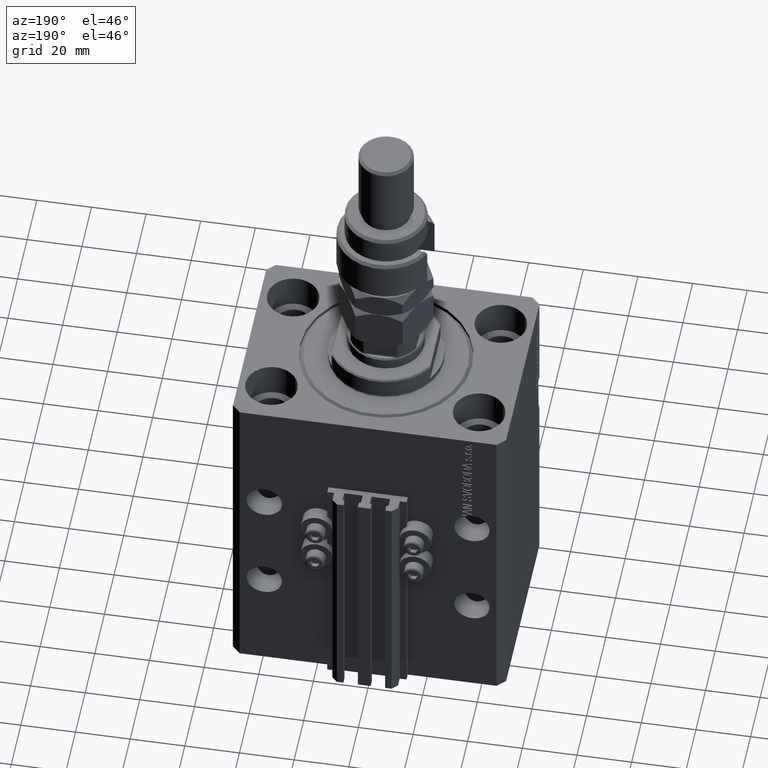
[diagram: clean part render]
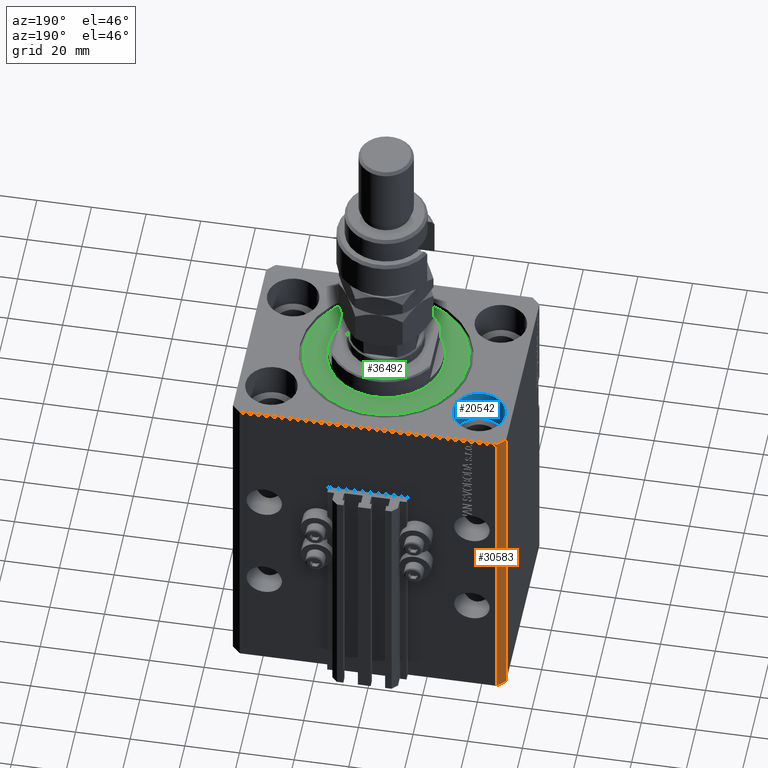
[diagram: same view with three faces highlighted in distinct colors, each labeled with its STEP entity id]
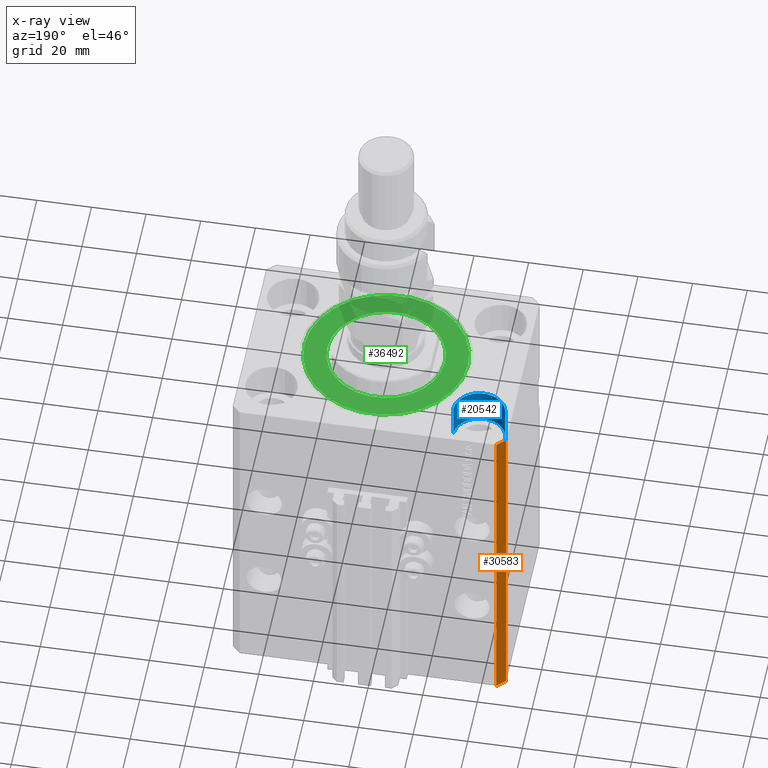
[diagram: x-ray of the same camera — body ghosted, the three highlighted faces saturated]
A machine part, auxiliary view with three faces highlighted in distinct colors.
The next image is the same camera in x-ray (body ghosted, the three faces saturated) — at least one of them is partly hidden behind the body in this view.
Their STEP definitions:

[orange] entity #30583 — the highlighted planar face has unit normal (-0.7071, 0.7071, 0).
#2762 = LINE ( 'NONE', #37610, #6996 ) ;
#4656 = EDGE_CURVE ( 'NONE', #17579, #46089, #13217, .T. ) ;
#5789 = VERTEX_POINT ( 'NONE', #24896 ) ;
#6147 = VECTOR ( 'NONE', #24327, 1000.000000000000000 ) ;
#6996 = VECTOR ( 'NONE', #11006, 1000.000000000000000 ) ;
#8596 = LINE ( 'NONE', #40068, #6147 ) ;
#9286 = DIRECTION ( 'NONE',  ( -0.7071067811865466846, 0.7071067811865483499, 0.000000000000000000 ) ) ;
#11006 = DIRECTION ( 'NONE',  ( -0.7071067811865483499, -0.7071067811865466846, 0.000000000000000000 ) ) ;
#13217 = LINE ( 'NONE', #36439, #25043 ) ;
#13888 = VERTEX_POINT ( 'NONE', #46411 ) ;
#17579 = VERTEX_POINT ( 'NONE', #36797 ) ;
#21682 = ORIENTED_EDGE ( 'NONE', *, *, #40776, .T. ) ;
#23624 = CARTESIAN_POINT ( 'NONE',  ( -50.00000000000001421, 34.50000000000000000, 0.000000000000000000 ) ) ;
#24327 = DIRECTION ( 'NONE',  ( 0.000000000000000000, 0.000000000000000000, 1.000000000000000000 ) ) ;
#24896 = CARTESIAN_POINT ( 'NONE',  ( -50.00000000000001421, 34.50000000000000000, -125.0000000000000000 ) ) ;
#25043 = VECTOR ( 'NONE', #32305, 1000.000000000000000 ) ;
#26899 = EDGE_LOOP ( 'NONE', ( #27093, #49155, #50468, #21682 ) ) ;
#27093 = ORIENTED_EDGE ( 'NONE', *, *, #4656, .F. ) ;
#28269 = CARTESIAN_POINT ( 'NONE',  ( -47.00000000000001421, 37.50000000000000000, -125.0000000000000000 ) ) ;
#28835 = EDGE_CURVE ( 'NONE', #13888, #17579, #31632, .T. ) ;
#29503 = VECTOR ( 'NONE', #43768, 1000.000000000000000 ) ;
#30583 = ADVANCED_FACE ( 'NONE', ( #44904 ), #47044, .T. ) ;
#31632 = LINE ( 'NONE', #28269, #29503 ) ;
#32305 = DIRECTION ( 'NONE',  ( -0.7071067811865483499, -0.7071067811865466846, 0.000000000000000000 ) ) ;
#36439 = CARTESIAN_POINT ( 'NONE',  ( -47.00000000000001421, 37.50000000000000000, 0.000000000000000000 ) ) ;
#36797 = CARTESIAN_POINT ( 'NONE',  ( -47.00000000000001421, 37.50000000000000000, 0.000000000000000000 ) ) ;
#37610 = CARTESIAN_POINT ( 'NONE',  ( -47.00000000000001421, 37.50000000000000000, -125.0000000000000000 ) ) ;
#40068 = CARTESIAN_POINT ( 'NONE',  ( -50.00000000000001421, 34.50000000000000000, -125.0000000000000000 ) ) ;
#40754 = DIRECTION ( 'NONE',  ( -0.7071067811865483499, -0.7071067811865466846, 0.000000000000000000 ) ) ;
#40776 = EDGE_CURVE ( 'NONE', #5789, #46089, #8596, .T. ) ;
#41674 = EDGE_CURVE ( 'NONE', #13888, #5789, #2762, .T. ) ;
#43768 = DIRECTION ( 'NONE',  ( 0.000000000000000000, 0.000000000000000000, 1.000000000000000000 ) ) ;
#44904 = FACE_OUTER_BOUND ( 'NONE', #26899, .T. ) ;
#46089 = VERTEX_POINT ( 'NONE', #23624 ) ;
#46411 = CARTESIAN_POINT ( 'NONE',  ( -47.00000000000001421, 37.50000000000000000, -125.0000000000000000 ) ) ;
#46889 = AXIS2_PLACEMENT_3D ( 'NONE', #48266, #9286, #40754 ) ;
#47044 = PLANE ( 'NONE',  #46889 ) ;
#48266 = CARTESIAN_POINT ( 'NONE',  ( -47.00000000000001421, 37.50000000000000000, -125.0000000000000000 ) ) ;
#49155 = ORIENTED_EDGE ( 'NONE', *, *, #28835, .F. ) ;
#50468 = ORIENTED_EDGE ( 'NONE', *, *, #41674, .T. ) ;

[blue] entity #20542 — the highlighted cylindrical surface (edge-blend (fillet) strip) has radius 9.5 mm, axis along (0, 0, 1).
#2273 = EDGE_CURVE ( 'NONE', #13769, #17024, #43904, .T. ) ;
#4225 = CARTESIAN_POINT ( 'NONE',  ( -47.50000000000000711, 22.50000000000000000, -13.00000000000000000 ) ) ;
#4716 = CARTESIAN_POINT ( 'NONE',  ( -38.00000000000000711, 22.50000000000000000, 0.000000000000000000 ) ) ;
#6313 = DIRECTION ( 'NONE',  ( 0.000000000000000000, 0.000000000000000000, 1.000000000000000000 ) ) ;
#9751 = DIRECTION ( 'NONE',  ( 1.000000000000000000, 0.000000000000000000, 0.000000000000000000 ) ) ;
#10509 = CYLINDRICAL_SURFACE ( 'NONE', #38408, 9.500000000000001776 ) ;
#10745 = CARTESIAN_POINT ( 'NONE',  ( -28.50000000000000355, 22.50000000000000000, -13.00000000000000000 ) ) ;
#11727 = EDGE_CURVE ( 'NONE', #23531, #15675, #13483, .T. ) ;
#13483 = CIRCLE ( 'NONE', #29142, 9.500000000000001776 ) ;
#13769 = VERTEX_POINT ( 'NONE', #33260 ) ;
#13775 = ORIENTED_EDGE ( 'NONE', *, *, #21252, .T. ) ;
#14131 = VECTOR ( 'NONE', #18482, 1000.000000000000000 ) ;
#15675 = VERTEX_POINT ( 'NONE', #38983 ) ;
#17024 = VERTEX_POINT ( 'NONE', #28337 ) ;
#17104 = CARTESIAN_POINT ( 'NONE',  ( -47.50000000000000711, 22.50000000000000000, -13.00000000000000000 ) ) ;
#17137 = ORIENTED_EDGE ( 'NONE', *, *, #35932, .F. ) ;
#17993 = FACE_OUTER_BOUND ( 'NONE', #39135, .T. ) ;
#18482 = DIRECTION ( 'NONE',  ( -0.000000000000000000, -0.000000000000000000, 1.000000000000000000 ) ) ;
#20452 = DIRECTION ( 'NONE',  ( 1.000000000000000000, 0.000000000000000000, 0.000000000000000000 ) ) ;
#20542 = ADVANCED_FACE ( 'NONE', ( #17993 ), #10509, .F. ) ;
#21252 = EDGE_CURVE ( 'NONE', #23531, #13769, #50719, .T. ) ;
#22841 = ORIENTED_EDGE ( 'NONE', *, *, #2273, .T. ) ;
#23531 = VERTEX_POINT ( 'NONE', #17104 ) ;
#26184 = CARTESIAN_POINT ( 'NONE',  ( -38.00000000000000711, 22.50000000000000000, -13.00000000000000000 ) ) ;
#28337 = CARTESIAN_POINT ( 'NONE',  ( -28.50000000000000355, 22.50000000000000000, 0.000000000000000000 ) ) ;
#29142 = AXIS2_PLACEMENT_3D ( 'NONE', #26184, #6313, #46072 ) ;
#30368 = LINE ( 'NONE', #10745, #14131 ) ;
#31552 = DIRECTION ( 'NONE',  ( 0.000000000000000000, 0.000000000000000000, 1.000000000000000000 ) ) ;
#33260 = CARTESIAN_POINT ( 'NONE',  ( -47.50000000000000711, 22.50000000000000000, 0.000000000000000000 ) ) ;
#34286 = VECTOR ( 'NONE', #35443, 1000.000000000000000 ) ;
#35443 = DIRECTION ( 'NONE',  ( -0.000000000000000000, -0.000000000000000000, 1.000000000000000000 ) ) ;
#35932 = EDGE_CURVE ( 'NONE', #15675, #17024, #30368, .T. ) ;
#38408 = AXIS2_PLACEMENT_3D ( 'NONE', #49500, #48989, #9751 ) ;
#38983 = CARTESIAN_POINT ( 'NONE',  ( -28.50000000000000355, 22.50000000000000000, -13.00000000000000000 ) ) ;
#39135 = EDGE_LOOP ( 'NONE', ( #45906, #13775, #22841, #17137 ) ) ;
#41438 = AXIS2_PLACEMENT_3D ( 'NONE', #4716, #31552, #20452 ) ;
#43904 = CIRCLE ( 'NONE', #41438, 9.500000000000001776 ) ;
#45906 = ORIENTED_EDGE ( 'NONE', *, *, #11727, .F. ) ;
#46072 = DIRECTION ( 'NONE',  ( 1.000000000000000000, 0.000000000000000000, 0.000000000000000000 ) ) ;
#48989 = DIRECTION ( 'NONE',  ( -0.000000000000000000, -0.000000000000000000, 1.000000000000000000 ) ) ;
#49500 = CARTESIAN_POINT ( 'NONE',  ( -38.00000000000000711, 22.50000000000000000, -13.00000000000000000 ) ) ;
#50719 = LINE ( 'NONE', #4225, #34286 ) ;

[green] entity #36492 — the highlighted planar face has unit normal (0, 0, -1).
#1021 = DIRECTION ( 'NONE',  ( -0.000000000000000000, -0.000000000000000000, -1.000000000000000000 ) ) ;
#1411 = CARTESIAN_POINT ( 'NONE',  ( 0.000000000000000000, 0.000000000000000000, 0.000000000000000000 ) ) ;
#2975 = EDGE_LOOP ( 'NONE', ( #42145, #11532 ) ) ;
#4147 = CARTESIAN_POINT ( 'NONE',  ( -29.99999999999999289, 3.765788907378110539E-15, 0.000000000000000000 ) ) ;
#4651 = CARTESIAN_POINT ( 'NONE',  ( -21.50000000000000000, 2.632990618166809630E-15, -2.168404344971008868E-16 ) ) ;
#5589 = CIRCLE ( 'NONE', #33585, 29.99999999999999289 ) ;
#7430 = EDGE_LOOP ( 'NONE', ( #50655, #33336 ) ) ;
#9171 = AXIS2_PLACEMENT_3D ( 'NONE', #25601, #45244, #17347 ) ;
#9921 = DIRECTION ( 'NONE',  ( 1.000000000000000000, 0.000000000000000000, 0.000000000000000000 ) ) ;
#11532 = ORIENTED_EDGE ( 'NONE', *, *, #14607, .T. ) ;
#12370 = CARTESIAN_POINT ( 'NONE',  ( 0.000000000000000000, 0.000000000000000000, 0.000000000000000000 ) ) ;
#13394 = DIRECTION ( 'NONE',  ( 1.000000000000000000, 0.000000000000000000, 0.000000000000000000 ) ) ;
#13443 = EDGE_CURVE ( 'NONE', #29311, #27156, #48168, .T. ) ;
#14607 = EDGE_CURVE ( 'NONE', #15788, #38857, #16045, .T. ) ;
#15788 = VERTEX_POINT ( 'NONE', #4147 ) ;
#16045 = CIRCLE ( 'NONE', #49870, 29.99999999999999289 ) ;
#17347 = DIRECTION ( 'NONE',  ( 1.000000000000000000, 0.000000000000000000, -0.000000000000000000 ) ) ;
#18598 = AXIS2_PLACEMENT_3D ( 'NONE', #21460, #41087, #33331 ) ;
#19138 = EDGE_CURVE ( 'NONE', #27156, #29311, #43276, .T. ) ;
#20492 = DIRECTION ( 'NONE',  ( 1.000000000000000000, 0.000000000000000000, 0.000000000000000000 ) ) ;
#20948 = AXIS2_PLACEMENT_3D ( 'NONE', #1411, #36241, #20492 ) ;
#21217 = PLANE ( 'NONE',  #9171 ) ;
#21460 = CARTESIAN_POINT ( 'NONE',  ( 0.000000000000000000, 0.000000000000000000, 0.000000000000000000 ) ) ;
#25601 = CARTESIAN_POINT ( 'NONE',  ( 0.000000000000000000, 0.000000000000000000, 0.000000000000000000 ) ) ;
#27156 = VERTEX_POINT ( 'NONE', #4651 ) ;
#29311 = VERTEX_POINT ( 'NONE', #31324 ) ;
#31324 = CARTESIAN_POINT ( 'NONE',  ( 21.50000000000000000, 0.000000000000000000, -2.168404344971008868E-16 ) ) ;
#32655 = CARTESIAN_POINT ( 'NONE',  ( 29.99999999999999289, 0.000000000000000000, 0.000000000000000000 ) ) ;
#33331 = DIRECTION ( 'NONE',  ( 1.000000000000000000, 0.000000000000000000, 0.000000000000000000 ) ) ;
#33336 = ORIENTED_EDGE ( 'NONE', *, *, #19138, .T. ) ;
#33585 = AXIS2_PLACEMENT_3D ( 'NONE', #12370, #1021, #13394 ) ;
#33600 = FACE_OUTER_BOUND ( 'NONE', #2975, .T. ) ;
#36241 = DIRECTION ( 'NONE',  ( 0.000000000000000000, 0.000000000000000000, 1.000000000000000000 ) ) ;
#36492 = ADVANCED_FACE ( 'NONE', ( #48604, #33600 ), #21217, .F. ) ;
#38857 = VERTEX_POINT ( 'NONE', #32655 ) ;
#41087 = DIRECTION ( 'NONE',  ( 0.000000000000000000, 0.000000000000000000, 1.000000000000000000 ) ) ;
#41659 = CARTESIAN_POINT ( 'NONE',  ( 0.000000000000000000, 0.000000000000000000, 0.000000000000000000 ) ) ;
#42145 = ORIENTED_EDGE ( 'NONE', *, *, #50070, .T. ) ;
#43276 = CIRCLE ( 'NONE', #18598, 21.50000000000000000 ) ;
#45244 = DIRECTION ( 'NONE',  ( 0.000000000000000000, 0.000000000000000000, 1.000000000000000000 ) ) ;
#45811 = DIRECTION ( 'NONE',  ( -0.000000000000000000, -0.000000000000000000, -1.000000000000000000 ) ) ;
#48168 = CIRCLE ( 'NONE', #20948, 21.50000000000000000 ) ;
#48604 = FACE_BOUND ( 'NONE', #7430, .T. ) ;
#49870 = AXIS2_PLACEMENT_3D ( 'NONE', #41659, #45811, #9921 ) ;
#50070 = EDGE_CURVE ( 'NONE', #38857, #15788, #5589, .T. ) ;
#50655 = ORIENTED_EDGE ( 'NONE', *, *, #13443, .T. ) ;